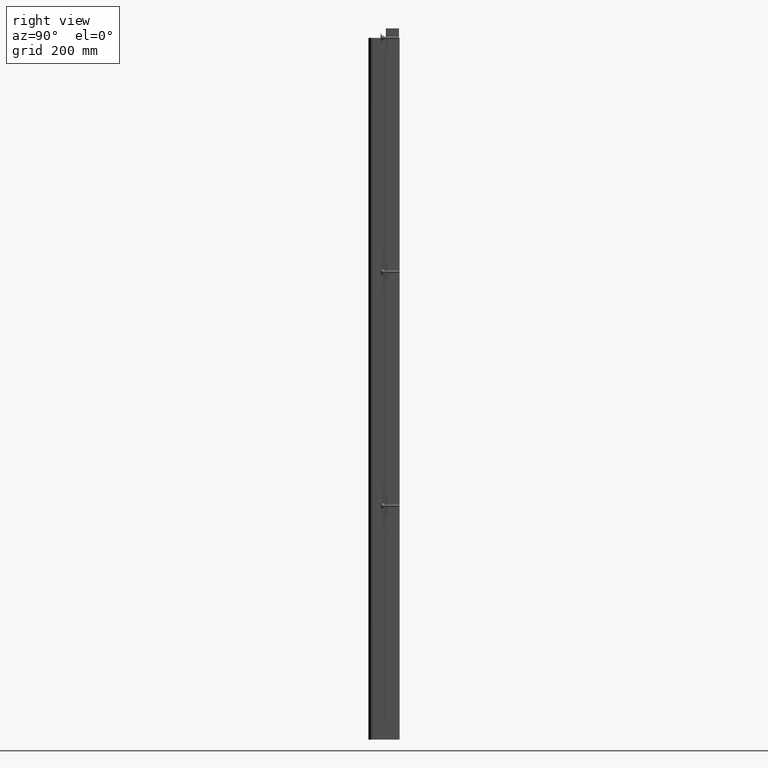
[diagram: clean part render]
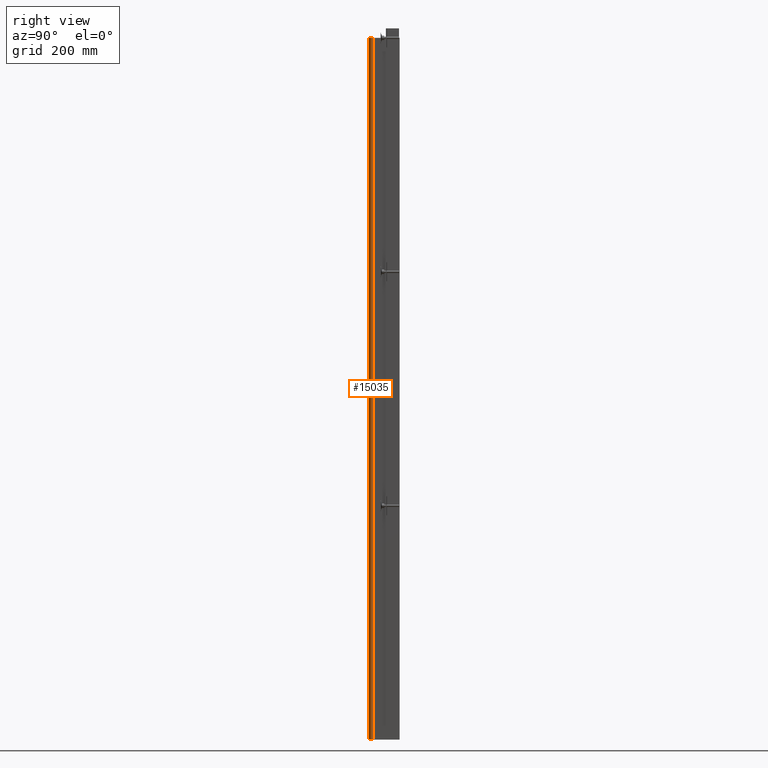
[diagram: same view with one face highlighted and labeled with its STEP entity id]
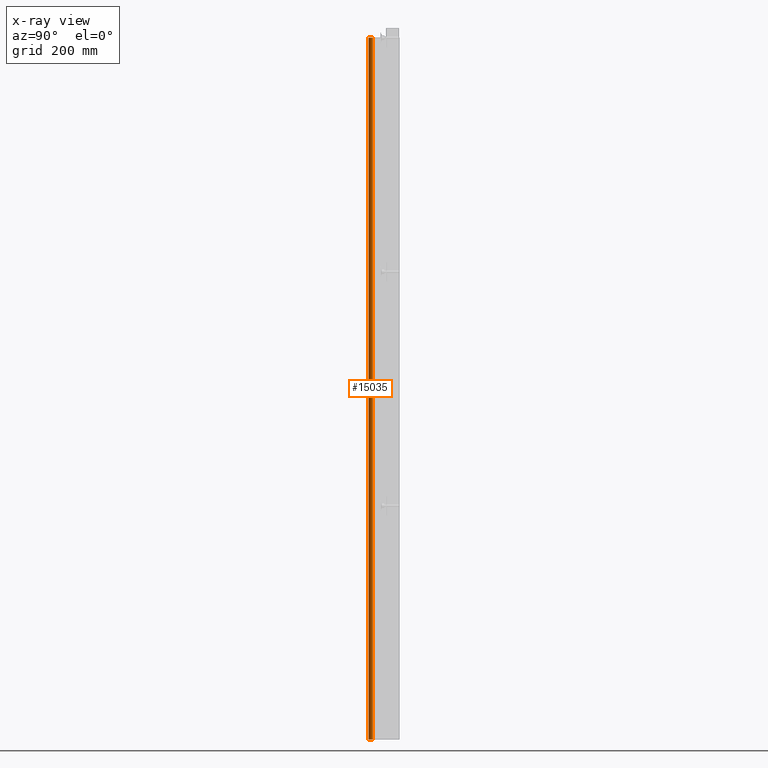
[diagram: x-ray of the same camera — body ghosted, the highlighted face saturated]
A machine part, right view. The second image highlights one B-rep face of the part: STEP entity #15035.
The next image is the same camera in x-ray: the body ghosted, the highlighted face saturated — about 0% of this face is hidden behind the body in this view.
In plain terms, the highlighted cylindrical surface (edge-blend (fillet) strip) has radius 15 mm, axis along (0, 0, 1).
Its self-contained STEP definition (entity closure, byte-faithful):
#14869=DIRECTION('',(0.E0,0.E0,1.E0));
#14870=VECTOR('',#14869,2.4E3);
#14871=CARTESIAN_POINT('',(0.E0,-2.98E1,-1.2E3));
#14872=LINE('',#14871,#14870);
#14873=CARTESIAN_POINT('',(1.5E1,-2.98E1,-1.2E3));
#14874=DIRECTION('',(0.E0,0.E0,1.E0));
#14875=DIRECTION('',(-1.E0,0.E0,0.E0));
#14876=AXIS2_PLACEMENT_3D('',#14873,#14874,#14875);
#14899=CARTESIAN_POINT('',(1.5E1,-2.98E1,1.2E3));
#14900=DIRECTION('',(0.E0,0.E0,1.E0));
#14901=DIRECTION('',(-1.E0,0.E0,0.E0));
#14902=AXIS2_PLACEMENT_3D('',#14899,#14900,#14901);
#14925=DIRECTION('',(0.E0,0.E0,1.E0));
#14926=VECTOR('',#14925,2.4E3);
#14927=CARTESIAN_POINT('',(1.5E1,-4.48E1,-1.2E3));
#14928=LINE('',#14927,#14926);
#14981=CARTESIAN_POINT('',(0.E0,-2.98E1,1.2E3));
#14982=VERTEX_POINT('',#14981);
#14983=CARTESIAN_POINT('',(0.E0,-2.98E1,-1.2E3));
#14984=VERTEX_POINT('',#14983);
#14985=CARTESIAN_POINT('',(1.5E1,-4.48E1,-1.2E3));
#14986=VERTEX_POINT('',#14985);
#14989=CARTESIAN_POINT('',(1.5E1,-4.48E1,1.2E3));
#14990=VERTEX_POINT('',#14989);
#15021=CARTESIAN_POINT('',(1.5E1,-2.98E1,-1.2E3));
#15022=DIRECTION('',(0.E0,0.E0,1.E0));
#15023=DIRECTION('',(0.E0,-1.E0,0.E0));
#15024=AXIS2_PLACEMENT_3D('',#15021,#15022,#15023);
#15025=CYLINDRICAL_SURFACE('',#15024,1.5E1);
#15027=ORIENTED_EDGE('',*,*,#15026,.T.);
#15029=ORIENTED_EDGE('',*,*,#15028,.T.);
#15031=ORIENTED_EDGE('',*,*,#15030,.F.);
#15032=ORIENTED_EDGE('',*,*,#15010,.F.);
#15033=EDGE_LOOP('',(#15027,#15029,#15031,#15032));
#15034=FACE_OUTER_BOUND('',#15033,.F.);
#14877=CIRCLE('',#14876,1.5E1);
#14903=CIRCLE('',#14902,1.5E1);
#15010=EDGE_CURVE('',#14984,#14982,#14872,.T.);
#15026=EDGE_CURVE('',#14984,#14986,#14877,.T.);
#15028=EDGE_CURVE('',#14986,#14990,#14928,.T.);
#15030=EDGE_CURVE('',#14982,#14990,#14903,.T.);
#15035=ADVANCED_FACE('',(#15034),#15025,.F.);